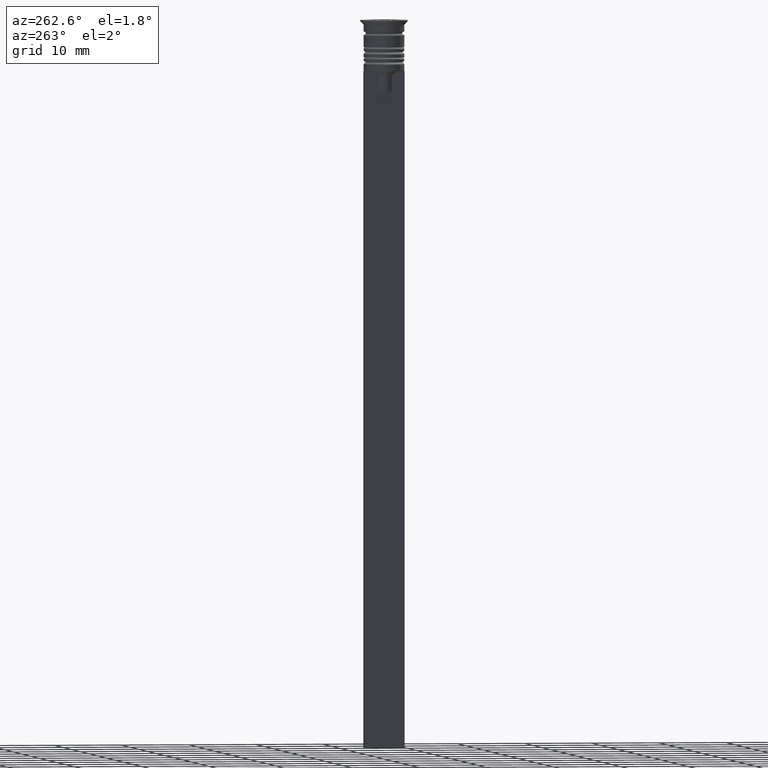
[diagram: clean part render]
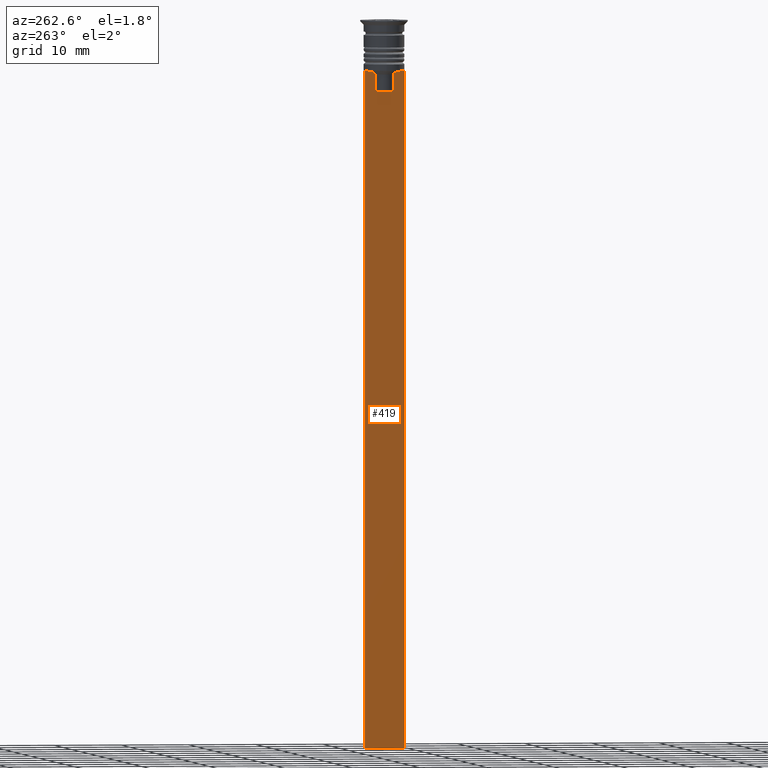
[diagram: same view with one face highlighted and labeled with its STEP entity id]
A machine part, auxiliary view. The second image highlights one B-rep face of the part: STEP entity #419.
In plain terms, the highlighted planar face has unit normal (-1, 0, 0).
Its self-contained STEP definition (entity closure, byte-faithful):
#39 = CARTESIAN_POINT ( 'NONE',  ( -0.5000000000000001110, -1.659011726860414093, -7.667884880598472286 ) ) ;
#46 = DIRECTION ( 'NONE',  ( -0.000000000000000000, -0.000000000000000000, 1.000000000000000000 ) ) ;
#80 = DIRECTION ( 'NONE',  ( 0.000000000000000000, 1.000000000000000000, 0.000000000000000000 ) ) ;
#138 = CARTESIAN_POINT ( 'NONE',  ( -0.5000000000000001110, -3.000000000000000000, -7.500000000000000000 ) ) ;
#139 = VERTEX_POINT ( 'NONE', #1714 ) ;
#149 = DIRECTION ( 'NONE',  ( -1.000000000000000000, 0.000000000000000000, 0.000000000000000000 ) ) ;
#151 = CARTESIAN_POINT ( 'NONE',  ( -0.5000000000000001110, -3.000000000000000000, -7.500000000000000000 ) ) ;
#159 = DIRECTION ( 'NONE',  ( 0.000000000000000000, -1.000000000000000000, 0.000000000000000000 ) ) ;
#167 = ORIENTED_EDGE ( 'NONE', *, *, #1123, .F. ) ;
#251 = DIRECTION ( 'NONE',  ( 0.000000000000000000, 0.000000000000000000, -1.000000000000000000 ) ) ;
#259 = CARTESIAN_POINT ( 'NONE',  ( -0.5000000000000001110, 3.000000000000000000, -1.417237469701779329 ) ) ;
#269 = CARTESIAN_POINT ( 'NONE',  ( -0.5000000000000001110, -1.833030277982335532, -7.500000000000000000 ) ) ;
#275 = EDGE_CURVE ( 'NONE', #568, #535, #2211, .T. ) ;
#283 = CARTESIAN_POINT ( 'NONE',  ( -0.5000000000000001110, -1.307669683062199217, -10.49999999999999822 ) ) ;
#327 = CARTESIAN_POINT ( 'NONE',  ( -0.5000000000000001110, 1.307669683062199217, 0.000000000000000000 ) ) ;
#331 = VERTEX_POINT ( 'NONE', #269 ) ;
#348 = CARTESIAN_POINT ( 'NONE',  ( -0.5000000000000001110, -2.856571371417139904, -7.500000000000000000 ) ) ;
#350 = CARTESIAN_POINT ( 'NONE',  ( -0.5000000000000001110, -3.000000000000000000, -1.417237469701779329 ) ) ;
#359 = B_SPLINE_CURVE_WITH_KNOTS ( 'NONE', 3,
 ( #2295, #520, #709, #1083 ),
 .UNSPECIFIED., .F., .F.,
 ( 4, 4 ),
 ( 0.003278537493109840491, 0.004003794023484932504 ),
 .UNSPECIFIED. ) ;
#381 = EDGE_CURVE ( 'NONE', #489, #331, #849, .T. ) ;
#392 = EDGE_CURVE ( 'NONE', #1328, #535, #2235, .T. ) ;
#412 = CARTESIAN_POINT ( 'NONE',  ( -0.5000000000000001110, -3.000000000000000000, -107.5000000000000000 ) ) ;
#419 = ADVANCED_FACE ( 'NONE', ( #2270 ), #1384, .T. ) ;
#451 = ORIENTED_EDGE ( 'NONE', *, *, #381, .F. ) ;
#457 = LINE ( 'NONE', #1833, #1018 ) ;
#473 = VECTOR ( 'NONE', #1831, 1000.000000000000000 ) ;
#482 = EDGE_CURVE ( 'NONE', #956, #139, #1372, .T. ) ;
#483 = LINE ( 'NONE', #151, #2232 ) ;
#484 = EDGE_CURVE ( 'NONE', #331, #1314, #654, .T. ) ;
#487 = DIRECTION ( 'NONE',  ( 0.000000000000000000, 0.000000000000000000, -1.000000000000000000 ) ) ;
#489 = VERTEX_POINT ( 'NONE', #2308 ) ;
#490 = DIRECTION ( 'NONE',  ( 0.000000000000000000, -1.000000000000000000, 0.000000000000000000 ) ) ;
#511 = VECTOR ( 'NONE', #490, 1000.000000000000000 ) ;
#516 = VERTEX_POINT ( 'NONE', #283 ) ;
#520 = CARTESIAN_POINT ( 'NONE',  ( -0.5000000000000001110, 1.659046061654642523, -7.667851756010361619 ) ) ;
#535 = VERTEX_POINT ( 'NONE', #1563 ) ;
#563 = CARTESIAN_POINT ( 'NONE',  ( -0.5000000000000001110, -3.000000000000000000, -107.5000000000000000 ) ) ;
#568 = VERTEX_POINT ( 'NONE', #1974 ) ;
#647 = CARTESIAN_POINT ( 'NONE',  ( -0.5000000000000001110, 2.856571371417139904, -7.500000000000000000 ) ) ;
#654 = LINE ( 'NONE', #2100, #511 ) ;
#692 = ORIENTED_EDGE ( 'NONE', *, *, #1243, .F. ) ;
#709 = CARTESIAN_POINT ( 'NONE',  ( -0.5000000000000001110, 1.484355510416485391, -7.834966642958598015 ) ) ;
#763 = VECTOR ( 'NONE', #487, 1000.000000000000000 ) ;
#849 = B_SPLINE_CURVE_WITH_KNOTS ( 'NONE', 3,
 ( #957, #1862, #39, #2021 ),
 .UNSPECIFIED., .F., .F.,
 ( 4, 4 ),
 ( 0.007225659348748070081, 0.007950554640278040958 ),
 .UNSPECIFIED. ) ;
#956 = VERTEX_POINT ( 'NONE', #1138 ) ;
#957 = CARTESIAN_POINT ( 'NONE',  ( -0.5000000000000001110, -1.307669683062199217, -8.000000000000000000 ) ) ;
#1008 = DIRECTION ( 'NONE',  ( 0.000000000000000000, 0.000000000000000000, -1.000000000000000000 ) ) ;
#1013 = AXIS2_PLACEMENT_3D ( 'NONE', #1341, #149, #2087 ) ;
#1018 = VECTOR ( 'NONE', #46, 1000.000000000000000 ) ;
#1039 = EDGE_CURVE ( 'NONE', #568, #2149, #2205, .T. ) ;
#1083 = CARTESIAN_POINT ( 'NONE',  ( -0.5000000000000001110, 1.307669683062199217, -8.000000000000000000 ) ) ;
#1119 = EDGE_CURVE ( 'NONE', #139, #516, #1847, .T. ) ;
#1123 = EDGE_CURVE ( 'NONE', #1913, #1328, #2281, .T. ) ;
#1138 = CARTESIAN_POINT ( 'NONE',  ( -0.5000000000000001110, 1.307669683062199217, -8.000000000000000000 ) ) ;
#1193 = CARTESIAN_POINT ( 'NONE',  ( -0.5000000000000001110, -3.000000000000000000, -7.500000000000000000 ) ) ;
#1228 = EDGE_CURVE ( 'NONE', #1453, #956, #359, .T. ) ;
#1243 = EDGE_CURVE ( 'NONE', #516, #489, #457, .T. ) ;
#1288 = CARTESIAN_POINT ( 'NONE',  ( -0.5000000000000001110, -3.000000000000000000, -7.500000000000000000 ) ) ;
#1314 = VERTEX_POINT ( 'NONE', #348 ) ;
#1328 = VERTEX_POINT ( 'NONE', #563 ) ;
#1341 = CARTESIAN_POINT ( 'NONE',  ( -0.5000000000000001110, -3.000000000000000000, -1.417237469701779329 ) ) ;
#1372 = LINE ( 'NONE', #327, #2189 ) ;
#1376 = DIRECTION ( 'NONE',  ( 0.000000000000000000, -1.000000000000000000, 0.000000000000000000 ) ) ;
#1384 = PLANE ( 'NONE',  #1013 ) ;
#1391 = EDGE_CURVE ( 'NONE', #2149, #1453, #483, .T. ) ;
#1399 = VECTOR ( 'NONE', #159, 1000.000000000000000 ) ;
#1453 = VERTEX_POINT ( 'NONE', #1665 ) ;
#1563 = CARTESIAN_POINT ( 'NONE',  ( -0.5000000000000001110, 3.000000000000000000, -107.5000000000000000 ) ) ;
#1587 = VECTOR ( 'NONE', #251, 1000.000000000000000 ) ;
#1608 = DIRECTION ( 'NONE',  ( 0.000000000000000000, -1.000000000000000000, 0.000000000000000000 ) ) ;
#1665 = CARTESIAN_POINT ( 'NONE',  ( -0.5000000000000001110, 1.833030277982335532, -7.500000000000000000 ) ) ;
#1710 = ORIENTED_EDGE ( 'NONE', *, *, #1228, .F. ) ;
#1714 = CARTESIAN_POINT ( 'NONE',  ( -0.5000000000000001110, 1.307669683062199217, -10.49999999999999822 ) ) ;
#1721 = ORIENTED_EDGE ( 'NONE', *, *, #482, .F. ) ;
#1752 = ORIENTED_EDGE ( 'NONE', *, *, #1391, .F. ) ;
#1761 = ORIENTED_EDGE ( 'NONE', *, *, #1119, .F. ) ;
#1775 = VECTOR ( 'NONE', #80, 1000.000000000000000 ) ;
#1825 = ORIENTED_EDGE ( 'NONE', *, *, #275, .T. ) ;
#1831 = DIRECTION ( 'NONE',  ( 0.000000000000000000, -1.000000000000000000, 0.000000000000000000 ) ) ;
#1833 = CARTESIAN_POINT ( 'NONE',  ( -0.5000000000000001110, -1.307669683062199217, 0.000000000000000000 ) ) ;
#1847 = LINE ( 'NONE', #2046, #1399 ) ;
#1862 = CARTESIAN_POINT ( 'NONE',  ( -0.5000000000000001110, -1.484307477388859153, -7.835011508197190722 ) ) ;
#1882 = ORIENTED_EDGE ( 'NONE', *, *, #1039, .F. ) ;
#1892 = VECTOR ( 'NONE', #1376, 1000.000000000000000 ) ;
#1913 = VERTEX_POINT ( 'NONE', #138 ) ;
#1974 = CARTESIAN_POINT ( 'NONE',  ( -0.5000000000000001110, 3.000000000000000000, -7.500000000000000000 ) ) ;
#2021 = CARTESIAN_POINT ( 'NONE',  ( -0.5000000000000001110, -1.833030277982335532, -7.500000000000000000 ) ) ;
#2046 = CARTESIAN_POINT ( 'NONE',  ( -0.5000000000000001110, 1.399999999999997691, -10.49999999999999822 ) ) ;
#2078 = ORIENTED_EDGE ( 'NONE', *, *, #392, .F. ) ;
#2082 = EDGE_LOOP ( 'NONE', ( #1710, #1752, #1882, #1825, #2078, #167, #2324, #2265, #451, #692, #1761, #1721 ) ) ;
#2087 = DIRECTION ( 'NONE',  ( 0.000000000000000000, 0.000000000000000000, 1.000000000000000000 ) ) ;
#2100 = CARTESIAN_POINT ( 'NONE',  ( -0.5000000000000001110, -3.000000000000000000, -7.500000000000000000 ) ) ;
#2149 = VERTEX_POINT ( 'NONE', #647 ) ;
#2189 = VECTOR ( 'NONE', #1008, 1000.000000000000000 ) ;
#2203 = EDGE_CURVE ( 'NONE', #1314, #1913, #2299, .T. ) ;
#2205 = LINE ( 'NONE', #1288, #473 ) ;
#2211 = LINE ( 'NONE', #259, #1587 ) ;
#2232 = VECTOR ( 'NONE', #1608, 1000.000000000000000 ) ;
#2235 = LINE ( 'NONE', #412, #1775 ) ;
#2265 = ORIENTED_EDGE ( 'NONE', *, *, #484, .F. ) ;
#2270 = FACE_OUTER_BOUND ( 'NONE', #2082, .T. ) ;
#2281 = LINE ( 'NONE', #350, #763 ) ;
#2295 = CARTESIAN_POINT ( 'NONE',  ( -0.5000000000000001110, 1.833030277982335532, -7.500000000000000000 ) ) ;
#2299 = LINE ( 'NONE', #1193, #1892 ) ;
#2308 = CARTESIAN_POINT ( 'NONE',  ( -0.5000000000000001110, -1.307669683062199217, -8.000000000000000000 ) ) ;
#2324 = ORIENTED_EDGE ( 'NONE', *, *, #2203, .F. ) ;